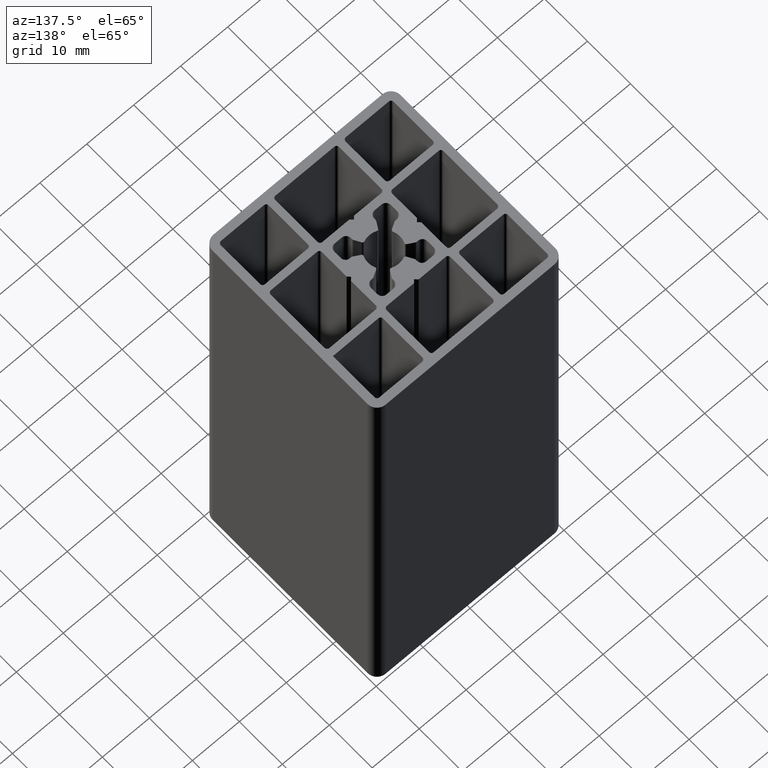
[diagram: clean part render]
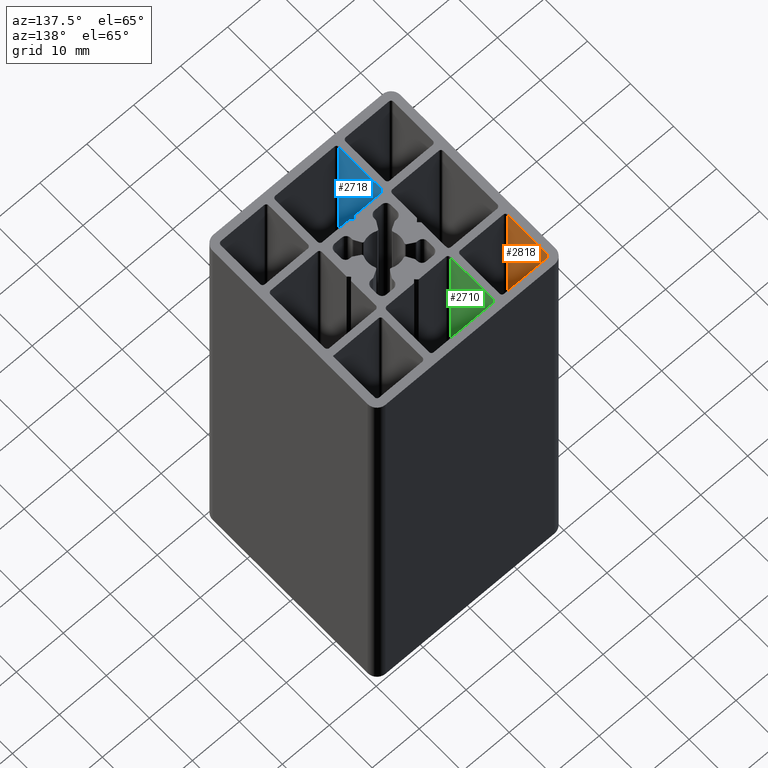
[diagram: same view with three faces highlighted in distinct colors, each labeled with its STEP entity id]
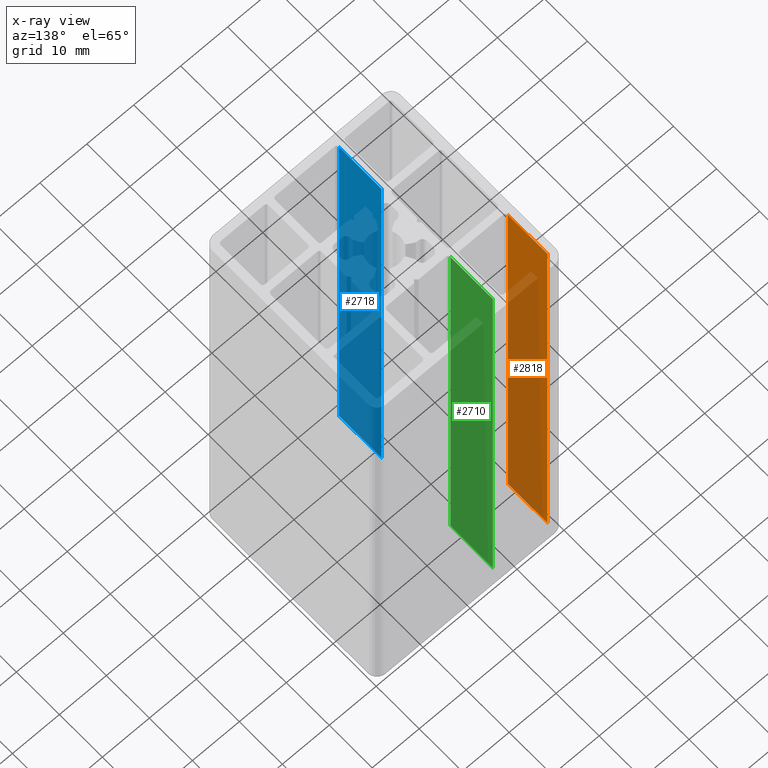
[diagram: x-ray of the same camera — body ghosted, the three highlighted faces saturated]
A machine part, auxiliary view with three faces highlighted in distinct colors.
The next image is the same camera in x-ray (body ghosted, the three faces saturated) — at least one of them is partly hidden behind the body in this view.
Their STEP definitions:

[orange] entity #2818 — the highlighted planar face has unit normal (-1, -0, 0).
#349=FACE_OUTER_BOUND('',#490,.T.);
#490=EDGE_LOOP('',(#2255,#2256,#2257,#2258));
#765=LINE('',#4649,#1048);
#766=LINE('',#4652,#1049);
#767=LINE('',#4654,#1050);
#768=LINE('',#4655,#1051);
#1048=VECTOR('',#3812,100.);
#1049=VECTOR('',#3815,9.19999703642828);
#1050=VECTOR('',#3816,9.19999703642828);
#1051=VECTOR('',#3817,100.);
#1330=VERTEX_POINT('',#4645);
#1331=VERTEX_POINT('',#4647);
#1332=VERTEX_POINT('',#4651);
#1333=VERTEX_POINT('',#4653);
#1723=EDGE_CURVE('',#1331,#1330,#765,.T.);
#1724=EDGE_CURVE('',#1330,#1332,#766,.T.);
#1725=EDGE_CURVE('',#1333,#1331,#767,.T.);
#1726=EDGE_CURVE('',#1332,#1333,#768,.T.);
#2255=ORIENTED_EDGE('',*,*,#1724,.F.);
#2256=ORIENTED_EDGE('',*,*,#1723,.F.);
#2257=ORIENTED_EDGE('',*,*,#1725,.F.);
#2258=ORIENTED_EDGE('',*,*,#1726,.F.);
#2687=PLANE('',#3075);
#2818=ADVANCED_FACE('',(#349),#2687,.F.);
#3075=AXIS2_PLACEMENT_3D('',#4650,#3813,#3814);
#3812=DIRECTION('',(0.,0.,1.));
#3813=DIRECTION('center_axis',(-1.,-4.82705818373254E-16,0.));
#3814=DIRECTION('ref_axis',(3.5527136788005E-16,-1.,0.));
#3815=DIRECTION('',(-4.82705818373254E-16,1.,0.));
#3816=DIRECTION('',(4.82705818373254E-16,-1.,0.));
#3817=DIRECTION('',(0.,0.,-1.));
#4645=CARTESIAN_POINT('',(-18.3999868884006,8.7,100.));
#4647=CARTESIAN_POINT('',(-18.3999868884006,8.7,0.));
#4649=CARTESIAN_POINT('',(-18.3999868884006,8.7,0.));
#4650=CARTESIAN_POINT('Origin',(-18.3999868884006,17.8999970364283,0.));
#4651=CARTESIAN_POINT('',(-18.3999868884006,17.8999970364283,100.));
#4652=CARTESIAN_POINT('',(-18.3999868884006,8.94999851821414,100.));
#4653=CARTESIAN_POINT('',(-18.3999868884006,17.8999970364283,0.));
#4654=CARTESIAN_POINT('',(-18.3999868884006,8.94999851821414,0.));
#4655=CARTESIAN_POINT('',(-18.3999868884006,17.8999970364283,0.));

[blue] entity #2718 — the highlighted planar face has unit normal (-1, 0, 0).
#249=FACE_OUTER_BOUND('',#390,.T.);
#390=EDGE_LOOP('',(#1855,#1856,#1857,#1858));
#567=LINE('',#4049,#850);
#568=LINE('',#4052,#851);
#569=LINE('',#4054,#852);
#570=LINE('',#4055,#853);
#850=VECTOR('',#3210,100.);
#851=VECTOR('',#3213,9.89999999999998);
#852=VECTOR('',#3214,9.89999999999998);
#853=VECTOR('',#3215,100.);
#1130=VERTEX_POINT('',#4045);
#1131=VERTEX_POINT('',#4047);
#1132=VERTEX_POINT('',#4051);
#1133=VERTEX_POINT('',#4053);
#1423=EDGE_CURVE('',#1131,#1130,#567,.T.);
#1424=EDGE_CURVE('',#1130,#1132,#568,.T.);
#1425=EDGE_CURVE('',#1133,#1131,#569,.T.);
#1426=EDGE_CURVE('',#1132,#1133,#570,.T.);
#1855=ORIENTED_EDGE('',*,*,#1424,.F.);
#1856=ORIENTED_EDGE('',*,*,#1423,.F.);
#1857=ORIENTED_EDGE('',*,*,#1425,.F.);
#1858=ORIENTED_EDGE('',*,*,#1426,.F.);
#2638=PLANE('',#2873);
#2718=ADVANCED_FACE('',(#249),#2638,.F.);
#2873=AXIS2_PLACEMENT_3D('',#4050,#3211,#3212);
#3210=DIRECTION('',(0.,0.,1.));
#3211=DIRECTION('center_axis',(-1.,3.36431219583382E-16,0.));
#3212=DIRECTION('ref_axis',(-3.5527136788005E-16,-1.,0.));
#3213=DIRECTION('',(3.36431219583382E-16,1.,0.));
#3214=DIRECTION('',(-3.36431219583382E-16,-1.,0.));
#3215=DIRECTION('',(0.,0.,-1.));
#4045=CARTESIAN_POINT('',(-6.8,-17.9000029636073,100.));
#4047=CARTESIAN_POINT('',(-6.8,-17.9000029636073,0.));
#4049=CARTESIAN_POINT('',(-6.8,-17.9000029636073,0.));
#4050=CARTESIAN_POINT('Origin',(-6.8,-8.00000296360734,0.));
#4051=CARTESIAN_POINT('',(-6.8,-8.00000296360734,100.));
#4052=CARTESIAN_POINT('',(-6.8,-4.00000148180367,100.));
#4053=CARTESIAN_POINT('',(-6.8,-8.00000296360734,0.));
#4054=CARTESIAN_POINT('',(-6.8,-4.00000148180367,0.));
#4055=CARTESIAN_POINT('',(-6.8,-8.00000296360734,0.));

[green] entity #2710 — the highlighted planar face has unit normal (-1, 0, 0).
#241=FACE_OUTER_BOUND('',#382,.T.);
#382=EDGE_LOOP('',(#1823,#1824,#1825,#1826));
#551=LINE('',#4001,#834);
#552=LINE('',#4004,#835);
#553=LINE('',#4006,#836);
#554=LINE('',#4007,#837);
#834=VECTOR('',#3162,100.);
#835=VECTOR('',#3165,9.9);
#836=VECTOR('',#3166,9.9);
#837=VECTOR('',#3167,100.);
#1114=VERTEX_POINT('',#3997);
#1115=VERTEX_POINT('',#3999);
#1116=VERTEX_POINT('',#4003);
#1117=VERTEX_POINT('',#4005);
#1399=EDGE_CURVE('',#1114,#1115,#551,.T.);
#1400=EDGE_CURVE('',#1114,#1116,#552,.T.);
#1401=EDGE_CURVE('',#1117,#1115,#553,.T.);
#1402=EDGE_CURVE('',#1116,#1117,#554,.T.);
#1823=ORIENTED_EDGE('',*,*,#1400,.F.);
#1824=ORIENTED_EDGE('',*,*,#1399,.T.);
#1825=ORIENTED_EDGE('',*,*,#1401,.F.);
#1826=ORIENTED_EDGE('',*,*,#1402,.F.);
#2634=PLANE('',#2857);
#2710=ADVANCED_FACE('',(#241),#2634,.F.);
#2857=AXIS2_PLACEMENT_3D('',#4002,#3163,#3164);
#3162=DIRECTION('',(0.,0.,-1.));
#3163=DIRECTION('center_axis',(-1.,0.,0.));
#3164=DIRECTION('ref_axis',(0.,-1.,0.));
#3165=DIRECTION('',(0.,1.,0.));
#3166=DIRECTION('',(0.,-1.,0.));
#3167=DIRECTION('',(0.,0.,-1.));
#3997=CARTESIAN_POINT('',(-6.8,7.99999703642828,100.));
#3999=CARTESIAN_POINT('',(-6.8,7.99999703642828,0.));
#4001=CARTESIAN_POINT('',(-6.8,7.99999703642828,0.));
#4002=CARTESIAN_POINT('Origin',(-6.8,17.8999970364283,0.));
#4003=CARTESIAN_POINT('',(-6.8,17.8999970364283,100.));
#4004=CARTESIAN_POINT('',(-6.8,8.94999851821414,100.));
#4005=CARTESIAN_POINT('',(-6.8,17.8999970364283,0.));
#4006=CARTESIAN_POINT('',(-6.8,8.94999851821414,0.));
#4007=CARTESIAN_POINT('',(-6.8,17.8999970364283,0.));